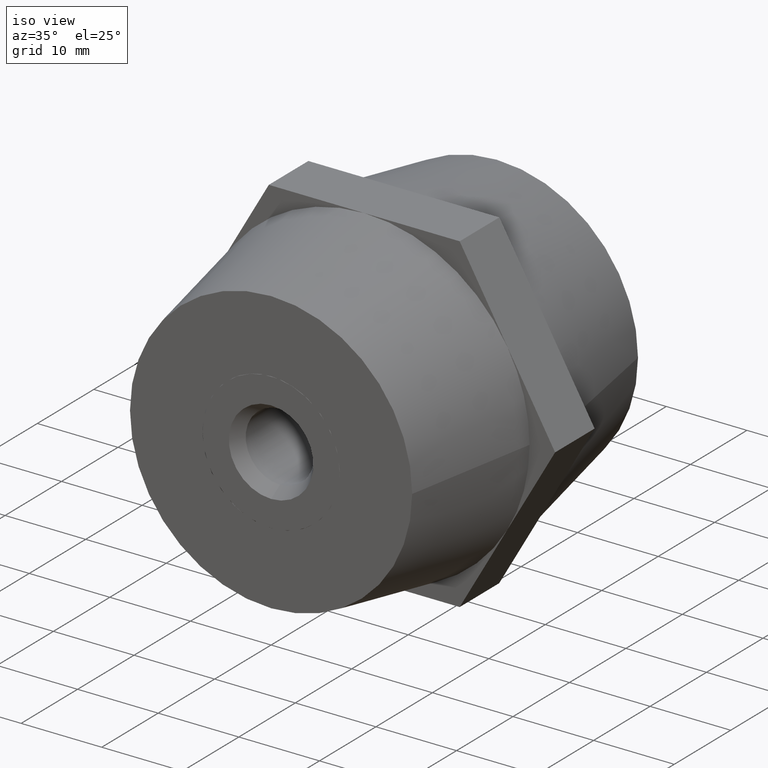
[diagram: clean part render]
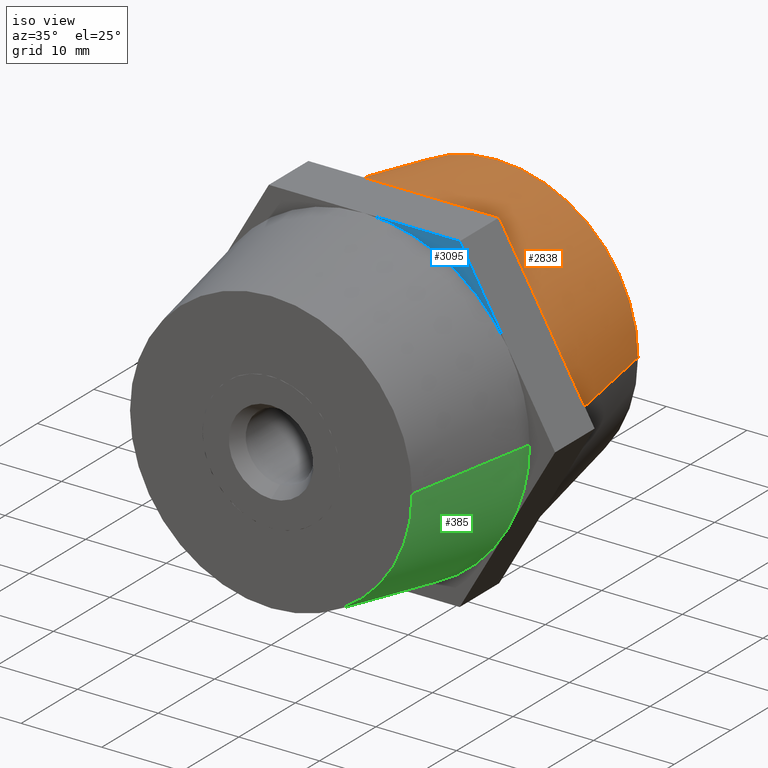
[diagram: same view with three faces highlighted in distinct colors, each labeled with its STEP entity id]
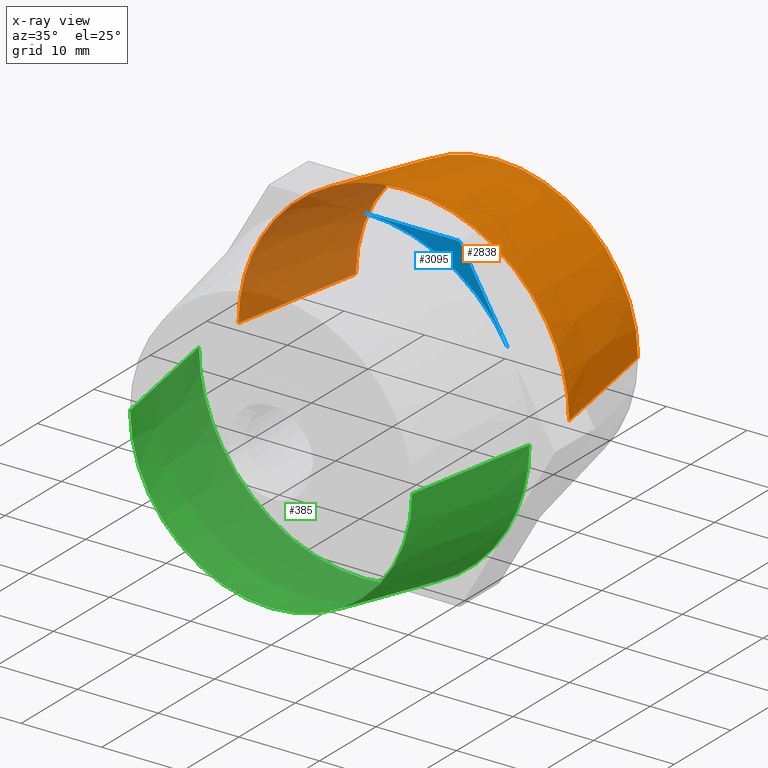
[diagram: x-ray of the same camera — body ghosted, the three highlighted faces saturated]
A machine part, iso view with three faces highlighted in distinct colors.
The next image is the same camera in x-ray (body ghosted, the three faces saturated) — at least one of them is partly hidden behind the body in this view.
Their STEP definitions:

[orange] entity #2838 — the highlighted conical surface has half-angle 10.305 deg.
#105 = AXIS2_PLACEMENT_3D ( 'NONE', #1359, #3144, #3482 ) ;
#152 = EDGE_CURVE ( 'NONE', #3315, #3054, #294, .T. ) ;
#211 = AXIS2_PLACEMENT_3D ( 'NONE', #1528, #1824, #3951 ) ;
#294 = CIRCLE ( 'NONE', #2719, 20.50000000000000000 ) ;
#330 = VECTOR ( 'NONE', #3381, 1000.000000000000100 ) ;
#339 = CARTESIAN_POINT ( 'NONE',  ( -2.624579619658250000E-031, 20.00000000000000000, 0.0000000000000000000 ) ) ;
#467 = CARTESIAN_POINT ( 'NONE',  ( 20.50000000000001800, 3.500000000000003600, 0.0000000000000000000 ) ) ;
#481 = CARTESIAN_POINT ( 'NONE',  ( -20.50000000000001400, 3.499999999999996400, 2.510525938252076100E-015 ) ) ;
#489 = FACE_OUTER_BOUND ( 'NONE', #3034, .T. ) ;
#573 = ORIENTED_EDGE ( 'NONE', *, *, #1530, .F. ) ;
#591 = EDGE_CURVE ( 'NONE', #3054, #1923, #3685, .T. ) ;
#633 = CARTESIAN_POINT ( 'NONE',  ( -17.50000000000000000, 19.99999999999999600, 2.143131898507868200E-015 ) ) ;
#663 = DIRECTION ( 'NONE',  ( -1.000000000000000000, -1.269309860470834500E-016, 0.0000000000000000000 ) ) ;
#712 = VERTEX_POINT ( 'NONE', #944 ) ;
#805 = EDGE_CURVE ( 'NONE', #2189, #2990, #1214, .T. ) ;
#894 = DIRECTION ( 'NONE',  ( -1.224646799147352000E-016, 1.000000000000000000, 0.0000000000000000000 ) ) ;
#944 = CARTESIAN_POINT ( 'NONE',  ( 17.50000000000000000, 20.00000000000000400, 0.0000000000000000000 ) ) ;
#1163 = LINE ( 'NONE', #633, #330 ) ;
#1184 = DIRECTION ( 'NONE',  ( -1.000000000000000000, -1.269309860470834500E-016, 0.0000000000000000000 ) ) ;
#1186 = ORIENTED_EDGE ( 'NONE', *, *, #2459, .F. ) ;
#1214 = CIRCLE ( 'NONE', #105, 20.50000000000000000 ) ;
#1246 = DIRECTION ( 'NONE',  ( 1.224646799147352000E-016, -1.000000000000000000, 0.0000000000000000000 ) ) ;
#1273 = ORIENTED_EDGE ( 'NONE', *, *, #805, .T. ) ;
#1284 = DIRECTION ( 'NONE',  ( 1.000000000000000000, 1.982541115402065400E-016, 0.0000000000000000000 ) ) ;
#1300 = CARTESIAN_POINT ( 'NONE',  ( 17.50000000000000000, 20.00000000000000400, 0.0000000000000000000 ) ) ;
#1313 = CARTESIAN_POINT ( 'NONE',  ( 2.020667218593134700E-015, 3.500000000000000000, 0.0000000000000000000 ) ) ;
#1359 = CARTESIAN_POINT ( 'NONE',  ( 2.020667218593134700E-015, 3.500000000000000000, 0.0000000000000000000 ) ) ;
#1382 = CARTESIAN_POINT ( 'NONE',  ( -17.50000000000000000, 19.99999999999999600, 2.326828918379972200E-015 ) ) ;
#1472 = ORIENTED_EDGE ( 'NONE', *, *, #591, .T. ) ;
#1528 = CARTESIAN_POINT ( 'NONE',  ( -2.624579619658250000E-031, 20.00000000000000000, 0.0000000000000000000 ) ) ;
#1530 = EDGE_CURVE ( 'NONE', #712, #1923, #1786, .T. ) ;
#1634 = DIRECTION ( 'NONE',  ( 0.1788854381999841500, -0.9838699100999073200, 0.0000000000000000000 ) ) ;
#1777 = CONICAL_SURFACE ( 'NONE', #3203, 17.50000000000000000, 0.1798534997924791400 ) ;
#1786 = LINE ( 'NONE', #1300, #3791 ) ;
#1821 = ORIENTED_EDGE ( 'NONE', *, *, #2905, .T. ) ;
#1824 = DIRECTION ( 'NONE',  ( -1.224646799147352000E-016, 1.000000000000000000, 0.0000000000000000000 ) ) ;
#1851 = ORIENTED_EDGE ( 'NONE', *, *, #3871, .T. ) ;
#1923 = VERTEX_POINT ( 'NONE', #467 ) ;
#2103 = VERTEX_POINT ( 'NONE', #1382 ) ;
#2143 = CARTESIAN_POINT ( 'NONE',  ( -17.75352077758099900, 3.500000000000000000, 10.25000000000000000 ) ) ;
#2159 = AXIS2_PLACEMENT_3D ( 'NONE', #3036, #894, #1184 ) ;
#2189 = VERTEX_POINT ( 'NONE', #481 ) ;
#2420 = ORIENTED_EDGE ( 'NONE', *, *, #152, .T. ) ;
#2459 = EDGE_CURVE ( 'NONE', #2103, #712, #3838, .T. ) ;
#2479 = DIRECTION ( 'NONE',  ( -1.000000000000000000, -1.269309860470834500E-016, 0.0000000000000000000 ) ) ;
#2531 = CARTESIAN_POINT ( 'NONE',  ( 17.75352077758099900, 3.500000000000000000, 10.25000000000000000 ) ) ;
#2719 = AXIS2_PLACEMENT_3D ( 'NONE', #3677, #3354, #663 ) ;
#2838 = ADVANCED_FACE ( 'NONE', ( #489 ), #1777, .T. ) ;
#2905 = EDGE_CURVE ( 'NONE', #2990, #3315, #3055, .T. ) ;
#2926 = CARTESIAN_POINT ( 'NONE',  ( -3.004629197474319600E-015, 3.500000000000000000, 20.50000000000000000 ) ) ;
#2990 = VERTEX_POINT ( 'NONE', #2143 ) ;
#3034 = EDGE_LOOP ( 'NONE', ( #1186, #1851, #1273, #1821, #2420, #1472, #573 ) ) ;
#3036 = CARTESIAN_POINT ( 'NONE',  ( 2.020667218593134700E-015, 3.500000000000000000, 0.0000000000000000000 ) ) ;
#3054 = VERTEX_POINT ( 'NONE', #2531 ) ;
#3055 = CIRCLE ( 'NONE', #3345, 20.50000000000000000 ) ;
#3144 = DIRECTION ( 'NONE',  ( -1.224646799147352000E-016, 1.000000000000000000, 0.0000000000000000000 ) ) ;
#3203 = AXIS2_PLACEMENT_3D ( 'NONE', #339, #1246, #1284 ) ;
#3315 = VERTEX_POINT ( 'NONE', #2926 ) ;
#3345 = AXIS2_PLACEMENT_3D ( 'NONE', #1313, #3757, #2479 ) ;
#3354 = DIRECTION ( 'NONE',  ( -1.224646799147352000E-016, 1.000000000000000000, 0.0000000000000000000 ) ) ;
#3381 = DIRECTION ( 'NONE',  ( -0.1788854381999839300, -0.9838699100999073200, 2.190714793056821400E-017 ) ) ;
#3482 = DIRECTION ( 'NONE',  ( -1.000000000000000000, -1.269309860470834500E-016, 0.0000000000000000000 ) ) ;
#3677 = CARTESIAN_POINT ( 'NONE',  ( 2.020667218593134700E-015, 3.500000000000000000, 0.0000000000000000000 ) ) ;
#3685 = CIRCLE ( 'NONE', #2159, 20.50000000000000000 ) ;
#3757 = DIRECTION ( 'NONE',  ( -1.224646799147352000E-016, 1.000000000000000000, 0.0000000000000000000 ) ) ;
#3791 = VECTOR ( 'NONE', #1634, 1000.000000000000100 ) ;
#3838 = CIRCLE ( 'NONE', #211, 17.50000000000000000 ) ;
#3871 = EDGE_CURVE ( 'NONE', #2103, #2189, #1163, .T. ) ;
#3951 = DIRECTION ( 'NONE',  ( -1.000000000000000000, -1.982541115402065400E-016, 0.0000000000000000000 ) ) ;

[blue] entity #3095 — the highlighted planar face has unit normal (0, 1, 0).
#77 = ORIENTED_EDGE ( 'NONE', *, *, #3616, .F. ) ;
#85 = DIRECTION ( 'NONE',  ( 0.0000000000000000000, 0.0000000000000000000, 1.000000000000000000 ) ) ;
#142 = EDGE_LOOP ( 'NONE', ( #311, #998, #77 ) ) ;
#311 = ORIENTED_EDGE ( 'NONE', *, *, #3491, .F. ) ;
#414 = VERTEX_POINT ( 'NONE', #3592 ) ;
#446 = CARTESIAN_POINT ( 'NONE',  ( 17.75352077758099900, -3.500000000000000000, 10.25000000000000000 ) ) ;
#520 = CARTESIAN_POINT ( 'NONE',  ( -11.83568051838732100, -3.500000000000000000, 20.50000000000000000 ) ) ;
#593 = CARTESIAN_POINT ( 'NONE',  ( 11.83568051838732100, -3.500000000000000000, 20.50000000000000000 ) ) ;
#781 = LINE ( 'NONE', #593, #2314 ) ;
#998 = ORIENTED_EDGE ( 'NONE', *, *, #3889, .T. ) ;
#1025 = CARTESIAN_POINT ( 'NONE',  ( 0.0000000000000000000, -3.500000000000000000, 0.0000000000000000000 ) ) ;
#1205 = LINE ( 'NONE', #520, #1497 ) ;
#1331 = DIRECTION ( 'NONE',  ( 0.0000000000000000000, 1.000000000000000000, 0.0000000000000000000 ) ) ;
#1488 = AXIS2_PLACEMENT_3D ( 'NONE', #2151, #2165, #1948 ) ;
#1497 = VECTOR ( 'NONE', #2061, 1000.000000000000000 ) ;
#1502 = VERTEX_POINT ( 'NONE', #3412 ) ;
#1795 = CIRCLE ( 'NONE', #1488, 20.50000000000000000 ) ;
#1948 = DIRECTION ( 'NONE',  ( 0.0000000000000000000, 0.0000000000000000000, 1.000000000000000000 ) ) ;
#2061 = DIRECTION ( 'NONE',  ( 1.000000000000000000, 0.0000000000000000000, 1.465672779255763900E-016 ) ) ;
#2151 = CARTESIAN_POINT ( 'NONE',  ( 2.877919977996279900E-015, -3.500000000000000000, 4.564592615003799800E-016 ) ) ;
#2165 = DIRECTION ( 'NONE',  ( 0.0000000000000000000, 1.000000000000000000, 0.0000000000000000000 ) ) ;
#2314 = VECTOR ( 'NONE', #2760, 1000.000000000000000 ) ;
#2760 = DIRECTION ( 'NONE',  ( 0.4999999999999998900, 0.0000000000000000000, -0.8660254037844387100 ) ) ;
#2879 = FACE_OUTER_BOUND ( 'NONE', #142, .T. ) ;
#3095 = ADVANCED_FACE ( 'NONE', ( #2879 ), #3168, .F. ) ;
#3168 = PLANE ( 'NONE',  #3824 ) ;
#3195 = VERTEX_POINT ( 'NONE', #446 ) ;
#3412 = CARTESIAN_POINT ( 'NONE',  ( -1.267092194780394200E-016, -3.500000000000000000, 20.50000000000000000 ) ) ;
#3491 = EDGE_CURVE ( 'NONE', #1502, #414, #1205, .T. ) ;
#3592 = CARTESIAN_POINT ( 'NONE',  ( 11.83568051838732100, -3.500000000000000000, 20.50000000000000000 ) ) ;
#3616 = EDGE_CURVE ( 'NONE', #414, #3195, #781, .T. ) ;
#3824 = AXIS2_PLACEMENT_3D ( 'NONE', #1025, #1331, #85 ) ;
#3889 = EDGE_CURVE ( 'NONE', #1502, #3195, #1795, .T. ) ;

[green] entity #385 — the highlighted conical surface has half-angle 10.305 deg.
#107 = CONICAL_SURFACE ( 'NONE', #475, 20.50000000000000000, 0.1798534997924791400 ) ;
#136 = DIRECTION ( 'NONE',  ( 0.1788854381999839300, 0.9838699100999073200, 2.190714793056821400E-017 ) ) ;
#183 = CARTESIAN_POINT ( 'NONE',  ( 5.882549175470600000E-015, -3.500000000000000000, -20.50000000000000000 ) ) ;
#210 = CIRCLE ( 'NONE', #3900, 20.50000000000000000 ) ;
#260 = EDGE_CURVE ( 'NONE', #1385, #3337, #210, .T. ) ;
#293 = DIRECTION ( 'NONE',  ( -0.1788854381999841500, 0.9838699100999073200, 0.0000000000000000000 ) ) ;
#385 = ADVANCED_FACE ( 'NONE', ( #1938 ), #107, .T. ) ;
#475 = AXIS2_PLACEMENT_3D ( 'NONE', #2377, #1708, #2607 ) ;
#518 = CARTESIAN_POINT ( 'NONE',  ( 20.50000000000000400, -3.500000000000000000, 2.510525938252074500E-015 ) ) ;
#600 = AXIS2_PLACEMENT_3D ( 'NONE', #3535, #2652, #3269 ) ;
#645 = AXIS2_PLACEMENT_3D ( 'NONE', #1983, #1628, #2889 ) ;
#649 = CARTESIAN_POINT ( 'NONE',  ( -17.49999999999999600, -20.00000000000000400, 0.0000000000000000000 ) ) ;
#721 = VECTOR ( 'NONE', #293, 1000.000000000000100 ) ;
#735 = CIRCLE ( 'NONE', #2398, 20.50000000000000000 ) ;
#830 = EDGE_CURVE ( 'NONE', #1846, #990, #3552, .T. ) ;
#834 = EDGE_CURVE ( 'NONE', #1846, #2811, #1702, .T. ) ;
#851 = ORIENTED_EDGE ( 'NONE', *, *, #3513, .T. ) ;
#966 = CARTESIAN_POINT ( 'NONE',  ( 2.877919977996279900E-015, -3.500000000000000000, 4.564592615003799800E-016 ) ) ;
#990 = VERTEX_POINT ( 'NONE', #518 ) ;
#1010 = CARTESIAN_POINT ( 'NONE',  ( -20.49999999999999600, -3.500000000000000000, 0.0000000000000000000 ) ) ;
#1162 = CARTESIAN_POINT ( 'NONE',  ( 2.877919977996279900E-015, -3.500000000000000000, 4.564592615003799800E-016 ) ) ;
#1191 = VERTEX_POINT ( 'NONE', #1010 ) ;
#1210 = CARTESIAN_POINT ( 'NONE',  ( -17.75352077758099900, -3.500000000000000000, -10.25000000000000000 ) ) ;
#1385 = VERTEX_POINT ( 'NONE', #2469 ) ;
#1551 = EDGE_CURVE ( 'NONE', #990, #1385, #735, .T. ) ;
#1628 = DIRECTION ( 'NONE',  ( -1.224646799147352000E-016, 1.000000000000000000, 0.0000000000000000000 ) ) ;
#1673 = ORIENTED_EDGE ( 'NONE', *, *, #2155, .F. ) ;
#1702 = CIRCLE ( 'NONE', #645, 17.50000000000000000 ) ;
#1708 = DIRECTION ( 'NONE',  ( -1.224646799147352000E-016, 1.000000000000000000, 0.0000000000000000000 ) ) ;
#1846 = VERTEX_POINT ( 'NONE', #2168 ) ;
#1938 = FACE_OUTER_BOUND ( 'NONE', #2176, .T. ) ;
#1958 = ORIENTED_EDGE ( 'NONE', *, *, #1551, .F. ) ;
#1961 = DIRECTION ( 'NONE',  ( 0.0000000000000000000, 0.0000000000000000000, 1.000000000000000000 ) ) ;
#1983 = CARTESIAN_POINT ( 'NONE',  ( 4.898587196589409900E-015, -20.00000000000000000, 0.0000000000000000000 ) ) ;
#2029 = DIRECTION ( 'NONE',  ( 0.0000000000000000000, 1.000000000000000000, 0.0000000000000000000 ) ) ;
#2152 = ORIENTED_EDGE ( 'NONE', *, *, #260, .F. ) ;
#2155 = EDGE_CURVE ( 'NONE', #3337, #2743, #3484, .T. ) ;
#2168 = CARTESIAN_POINT ( 'NONE',  ( 17.50000000000000400, -19.99999999999999600, 2.326828918379971800E-015 ) ) ;
#2170 = ORIENTED_EDGE ( 'NONE', *, *, #834, .T. ) ;
#2176 = EDGE_LOOP ( 'NONE', ( #2502, #2170, #851, #3273, #1673, #2152, #1958 ) ) ;
#2377 = CARTESIAN_POINT ( 'NONE',  ( 2.877919977996279900E-015, -3.500000000000000000, 0.0000000000000000000 ) ) ;
#2398 = AXIS2_PLACEMENT_3D ( 'NONE', #1162, #2029, #3242 ) ;
#2431 = CARTESIAN_POINT ( 'NONE',  ( -20.49999999999999600, -3.500000000000002700, 0.0000000000000000000 ) ) ;
#2469 = CARTESIAN_POINT ( 'NONE',  ( 17.75352077758099900, -3.500000000000000000, -10.25000000000000000 ) ) ;
#2496 = DIRECTION ( 'NONE',  ( 0.0000000000000000000, 1.000000000000000000, 0.0000000000000000000 ) ) ;
#2502 = ORIENTED_EDGE ( 'NONE', *, *, #830, .F. ) ;
#2607 = DIRECTION ( 'NONE',  ( -1.000000000000000000, -1.269309860470834500E-016, 0.0000000000000000000 ) ) ;
#2621 = EDGE_CURVE ( 'NONE', #2743, #1191, #3967, .T. ) ;
#2652 = DIRECTION ( 'NONE',  ( 0.0000000000000000000, 1.000000000000000000, 0.0000000000000000000 ) ) ;
#2743 = VERTEX_POINT ( 'NONE', #1210 ) ;
#2751 = DIRECTION ( 'NONE',  ( 0.0000000000000000000, 1.000000000000000000, 0.0000000000000000000 ) ) ;
#2811 = VERTEX_POINT ( 'NONE', #649 ) ;
#2889 = DIRECTION ( 'NONE',  ( -1.000000000000000000, -1.982541115402065400E-016, 0.0000000000000000000 ) ) ;
#2977 = VECTOR ( 'NONE', #136, 1000.000000000000100 ) ;
#3002 = AXIS2_PLACEMENT_3D ( 'NONE', #3332, #2751, #3340 ) ;
#3131 = CARTESIAN_POINT ( 'NONE',  ( 20.50000000000000400, -3.499999999999997300, 2.510525938252074500E-015 ) ) ;
#3242 = DIRECTION ( 'NONE',  ( 0.0000000000000000000, 0.0000000000000000000, 1.000000000000000000 ) ) ;
#3269 = DIRECTION ( 'NONE',  ( 0.0000000000000000000, 0.0000000000000000000, 1.000000000000000000 ) ) ;
#3273 = ORIENTED_EDGE ( 'NONE', *, *, #2621, .F. ) ;
#3332 = CARTESIAN_POINT ( 'NONE',  ( 2.877919977996279900E-015, -3.500000000000000000, 4.564592615003799800E-016 ) ) ;
#3337 = VERTEX_POINT ( 'NONE', #183 ) ;
#3340 = DIRECTION ( 'NONE',  ( 0.0000000000000000000, 0.0000000000000000000, 1.000000000000000000 ) ) ;
#3484 = CIRCLE ( 'NONE', #600, 20.50000000000000000 ) ;
#3513 = EDGE_CURVE ( 'NONE', #2811, #1191, #3955, .T. ) ;
#3535 = CARTESIAN_POINT ( 'NONE',  ( 2.877919977996279900E-015, -3.500000000000000000, 4.564592615003799800E-016 ) ) ;
#3552 = LINE ( 'NONE', #3131, #2977 ) ;
#3900 = AXIS2_PLACEMENT_3D ( 'NONE', #966, #2496, #1961 ) ;
#3955 = LINE ( 'NONE', #2431, #721 ) ;
#3967 = CIRCLE ( 'NONE', #3002, 20.50000000000000000 ) ;